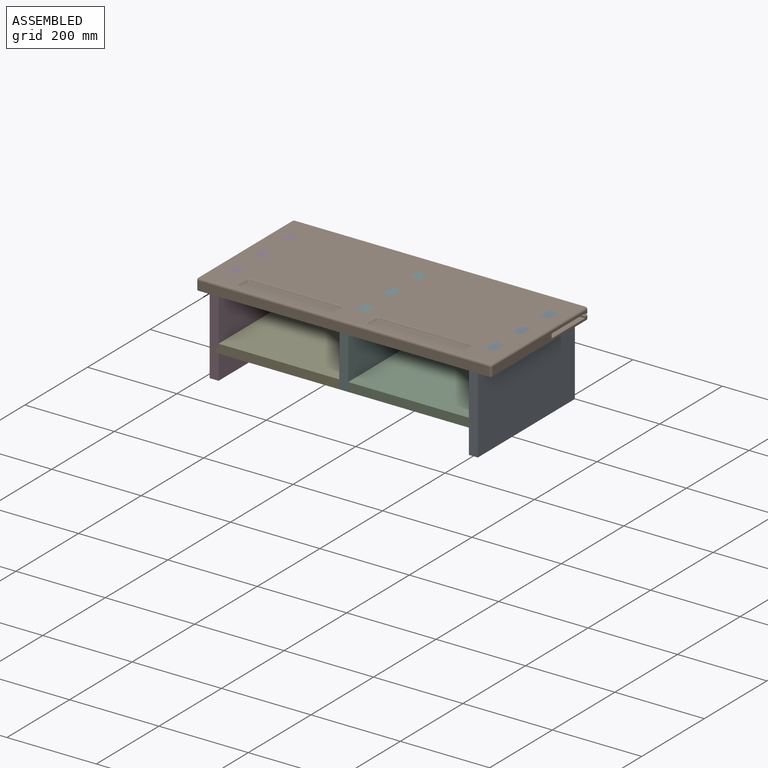
[diagram: assembled view]
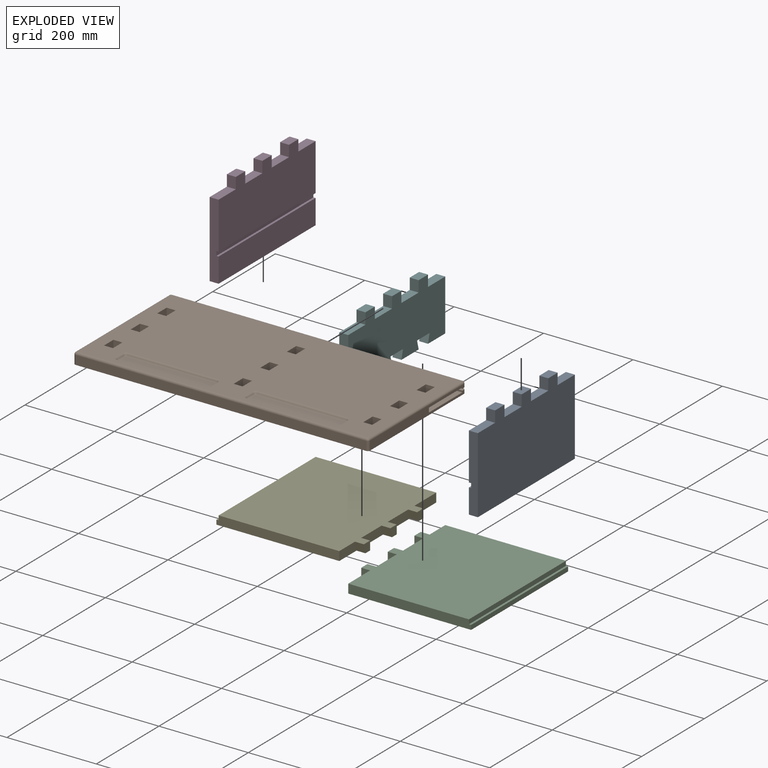
[diagram: exploded view]
GUIDED TOUR — MATED ASSEMBLY (Onshape document 3bc8e83e390c2407cafb0d33, AutoMate assembly 3bc8e83e390c2407cafb0d33_95cb70a22ce2d8c48ceac71e_00609371be02516c6efd1b77_default)

This assembly has 6 components, labeled P0..P5 below (a component is one placed occurrence of a part; the same part can appear more than once), held together by 5 mates. A mate is a constraint between two components; its type names the relative motion it leaves free:
  FASTENED — locks the two components together rigidly (no relative motion).
Axis/direction vectors are unit vectors and 'through' points are millimeter coordinates, both in the assembly's world frame.

MATES
  1. FASTENED "Fastened 4": P2 <-> P5, direction (0.000, 0.000, -1.000) through (168.34, 105.17, -126.24) mm
  2. FASTENED "Fastened 6": P5 <-> P1, direction (0.000, 0.000, 1.000) through (148.34, 90.17, 13.76) mm
  3. FASTENED "Fastened 3": P2 <-> P4, direction (0.000, -1.000, 0.000) through (158.34, 90.17, -116.24) mm
  4. FASTENED "Fastened 2": P0 <-> P1, direction (0.000, 0.000, 1.000) through (438.34, 90.17, 13.76) mm
  5. FASTENED "Fastened 1": P3 <-> P1, direction (0.000, 0.000, 1.000) through (-121.66, -79.83, 13.76) mm

ASSEMBLY ORDER
  1. P5 — the base component [order verified]
  2. P0 [order verified]
  3. P4 [order verified]
  4. P2 [order verified]
  5. P1 [order verified]
  6. P3 [order verified]
Order-tag legend:
  [order verified] — this step's position reverses a verified removal order: the component was checked to insert without passing through the ones already placed.

Of the 6 components, 2 carry the full construction recipe — the FeatureScript program that regenerates the part's solid from scratch; the rest are supplied as boundary geometry only.
Each toured component is shown spotlighted twice — in the assembled view, then in the exploded view, where a leader line traces a displaced component back to its assembled socket (saturated green if recipe-attached, orange if geometry-only; every other component desaturated gray) — followed by its recipe or geometry summary and the mates that hold it.
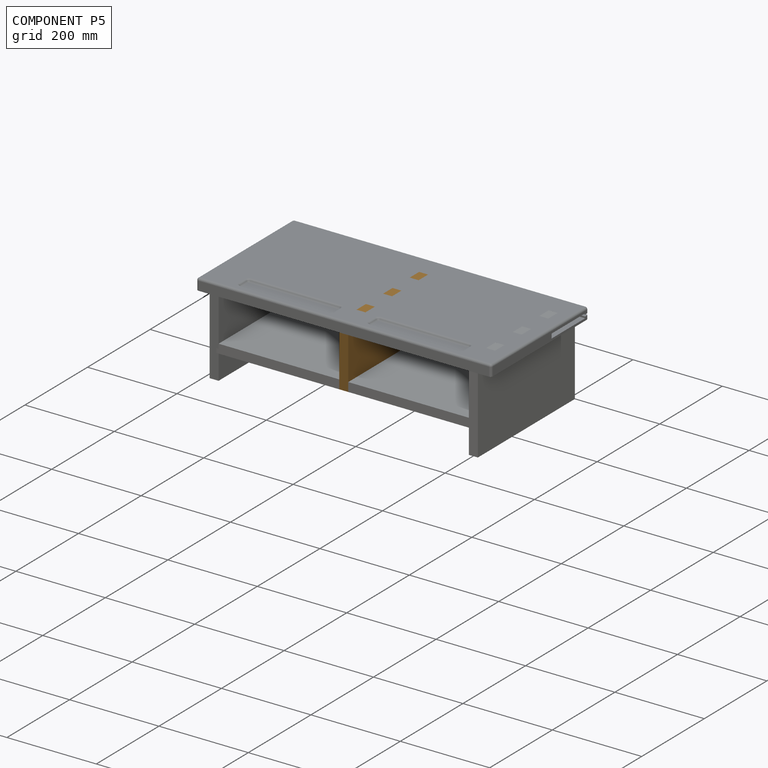
[diagram: component P5 — assembled]
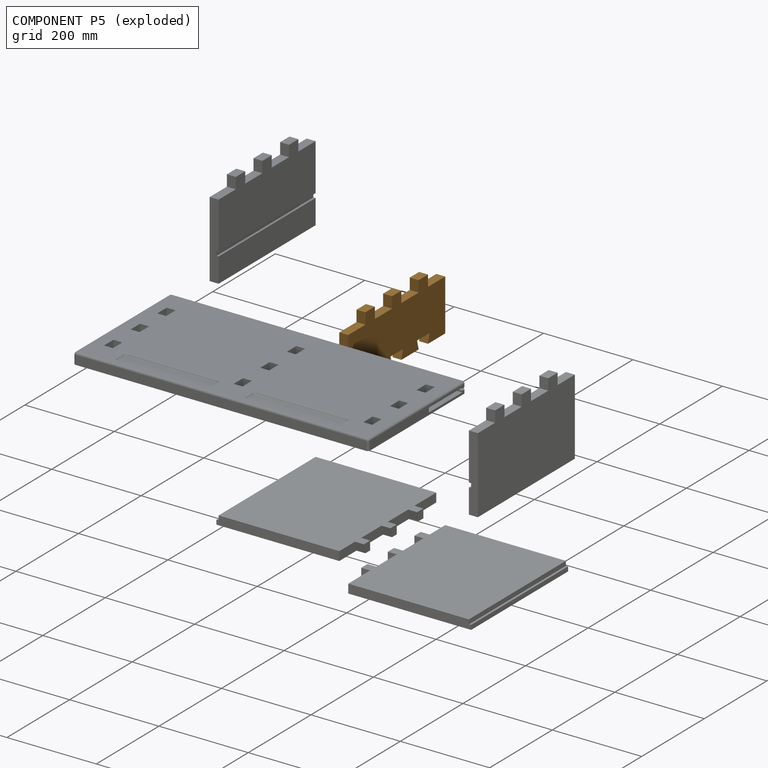
[diagram: component P5 — exploded]
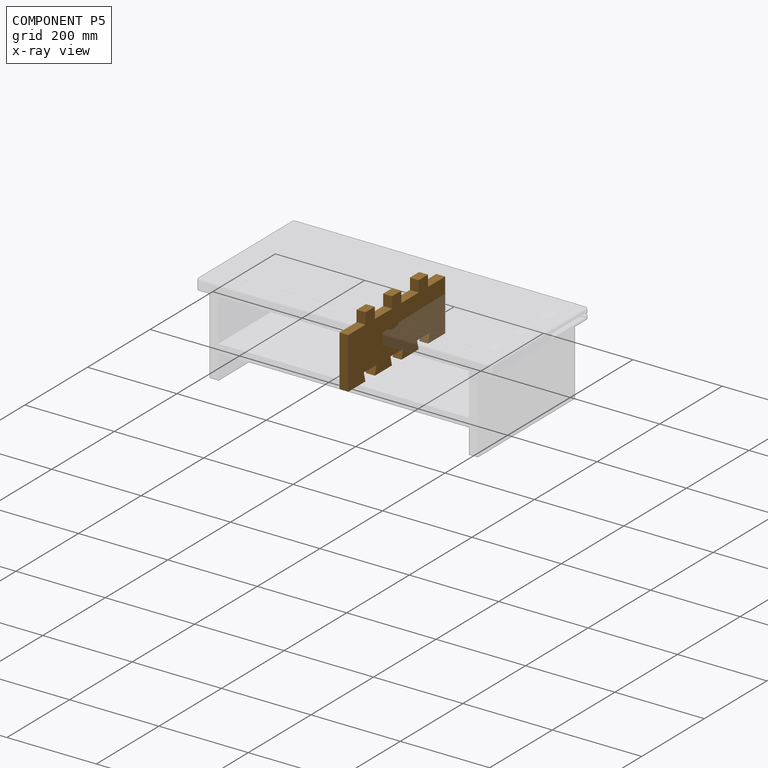
[diagram: component P5 — x-ray view]
COMPONENT P5 — geometry summary (no construction recipe available for this part):
  bounding box: 310.0 x 140.0 x 20.0 mm
  B-rep topology: 1 solid, 30 faces, 168 edges
  volume: 716000 mm^3 (82% of its bounding box)
  symmetry: 2-fold rotationally symmetric about the z axis; mirror-symmetric across its x mid-plane, y mid-plane
Held by: FASTENED mate "Fastened 4" to P2; FASTENED mate "Fastened 6" to P1.
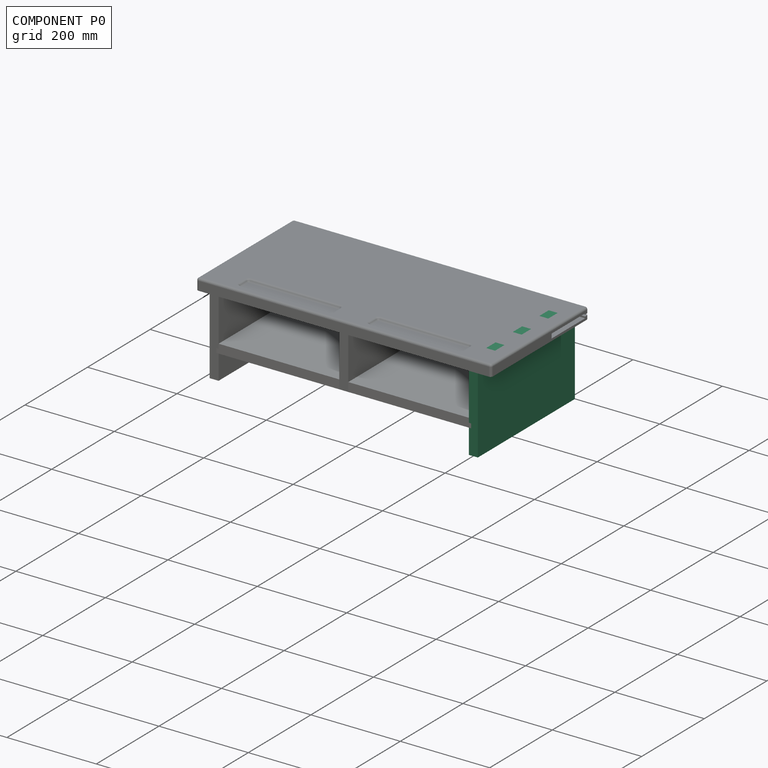
[diagram: component P0 — assembled]
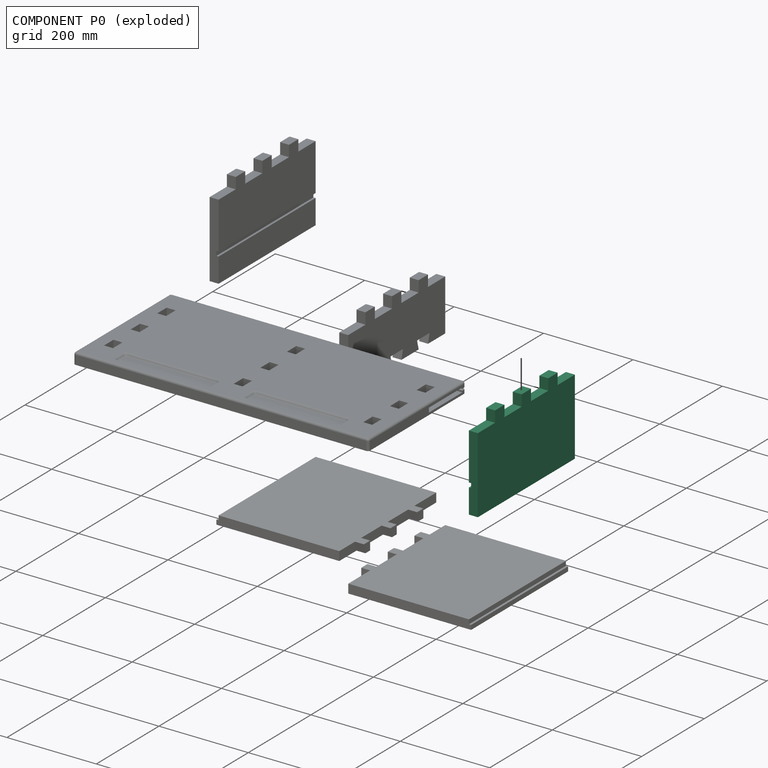
[diagram: component P0 — exploded]
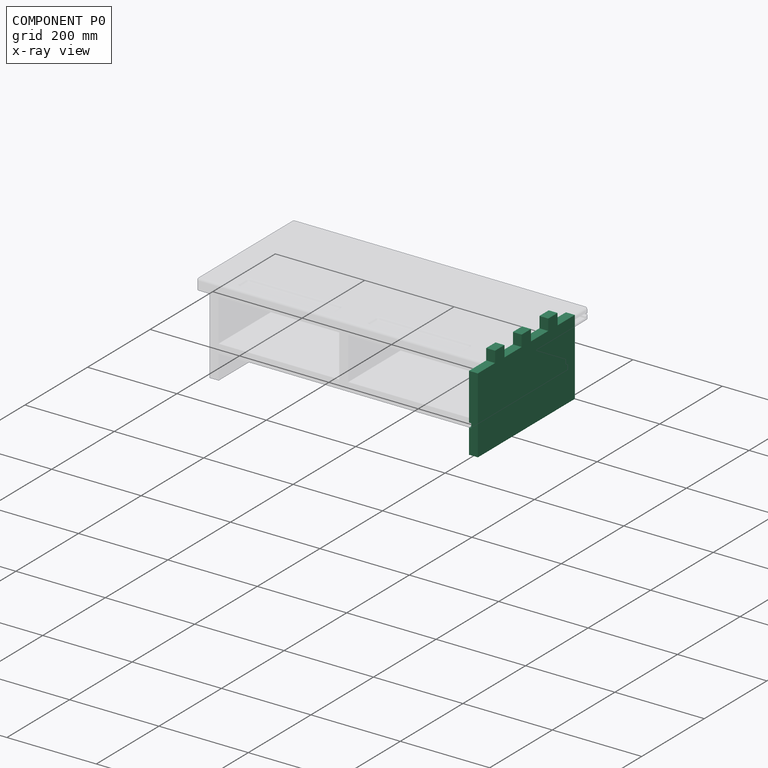
[diagram: component P0 — x-ray view]
COMPONENT P0 — recipe-attached (CADFS 00943072, mesh-verified: the recipe's output STEP matches this component's geometry to below the mesh-comparison resolution (tessellation chordal tolerance ~0.55 mm)).
Held by: FASTENED mate "Fastened 2" to P1.
Construction recipe (FeatureScript — the CAD program that rebuilds this solid; sketch coordinates are in the units given by the * unit suffixes, e.g. mm):

FeatureScript 1511;
import(path : "onshape/std/geometry.fs", version : "1511.0");
import(path : "onshape/std/common.fs", version : "1511.0");
const mm = millimeter;
const VERTEX = EntityType.VERTEX;
const EDGE = EntityType.EDGE;
const FACE = EntityType.FACE;
const BODY = EntityType.BODY;
function v(x, y){return vector(x, y);}
function OD(order){return orderDisambiguation(order);}
function OSD(set){return originalSetDisambiguation(set);}
function TD(topology){return topologyDisambiguation(topology);}
function TDD(query){return trueDependencyDisambiguation(query);}
function sQuery(a, b, c) {return sketchEntityQuery(a, b, c);}

annotation { "Feature Type Name" : "Feature", "Feature Type Description" : "" }
export const myFeature = defineFeature(function(context is Context, id is Id, definition is map)
    precondition{}
    {
        {
            var Q0;
            Q0=qCreatedBy(makeId("Right.planeOp"),FACE);
            var sketch = newSketch(context, id + "F0", { "sketchPlane" : qUnion([Q0])});
            skLineSegment(sketch, "E0.bottom", {"start": v(-191.91, 16.05) * mm, "end": v(118.09, 16.05) * mm});
            skLineSegment(sketch, "E0.top", {"start": v(-191.91, -153.95) * mm, "end": v(118.09, -153.95) * mm});
            skLineSegment(sketch, "E0.left", {"start": v(-191.91, 16.05) * mm, "end": v(-191.91, -153.95) * mm});
            skLineSegment(sketch, "E0.right", {"start": v(118.09, 16.05) * mm, "end": v(118.09, -153.95) * mm});
            skLineSegment(sketch, "E1.bottom", {"start": v(-136.91, 16.05) * mm, "end": v(-106.91, 16.05) * mm});
            skLineSegment(sketch, "E1.top", {"start": v(-136.91, 41.05) * mm, "end": v(-106.91, 41.05) * mm});
            skLineSegment(sketch, "E1.left", {"start": v(-136.91, 16.05) * mm, "end": v(-136.91, 41.05) * mm});
            skLineSegment(sketch, "E1.right", {"start": v(-106.91, 16.05) * mm, "end": v(-106.91, 41.05) * mm});
            skLineSegment(sketch, "E2.bottom", {"start": v(-51.91, 16.05) * mm, "end": v(-21.91, 16.05) * mm});
            skLineSegment(sketch, "E2.top", {"start": v(-51.91, 41.05) * mm, "end": v(-21.91, 41.05) * mm});
            skLineSegment(sketch, "E2.left", {"start": v(-51.91, 16.05) * mm, "end": v(-51.91, 41.05) * mm});
            skLineSegment(sketch, "E2.right", {"start": v(-21.91, 16.05) * mm, "end": v(-21.91, 41.05) * mm});
            skLineSegment(sketch, "E3.bottom", {"start": v(33.09, 16.05) * mm, "end": v(63.09, 16.05) * mm});
            skLineSegment(sketch, "E3.top", {"start": v(33.09, 41.05) * mm, "end": v(63.09, 41.05) * mm});
            skLineSegment(sketch, "E3.left", {"start": v(33.09, 16.05) * mm, "end": v(33.09, 41.05) * mm});
            skLineSegment(sketch, "E3.right", {"start": v(63.09, 16.05) * mm, "end": v(63.09, 41.05) * mm});
            skSolve(sketch);
        }
        {
            var Q0;
            Q0 = qSketchRegion(id + "F0", true);
            extrude(context, id + "F1", {"entities" : qUnion([Q0]), "depth" : 20 * mm, "offsetDistance" : 25 * mm});
        }
        {
            var Q0;
            Q0=makeQuery(id+"F1.opExtrude","CAP_FACE",FACE,{"disambiguationData":[OSD([sQuery(id+"F0.wireOp",EDGE,"E0.bottom"),sQuery(id+"F0.wireOp",EDGE,"E0.top"),sQuery(id+"F0.wireOp",EDGE,"E0.left"),sQuery(id+"F0.wireOp",EDGE,"E0.right"),sQuery(id+"F0.wireOp",EDGE,"E1.top"),sQuery(id+"F0.wireOp",EDGE,"E1.left"),sQuery(id+"F0.wireOp",EDGE,"E1.right"),sQuery(id+"F0.wireOp",EDGE,"E2.top"),sQuery(id+"F0.wireOp",EDGE,"E2.left"),sQuery(id+"F0.wireOp",EDGE,"E2.right"),sQuery(id+"F0.wireOp",EDGE,"E3.top"),sQuery(id+"F0.wireOp",EDGE,"E3.left"),sQuery(id+"F0.wireOp",EDGE,"E3.right")])],"isStart":false});
            var sketch = newSketch(context, id + "F2", { "sketchPlane" : qUnion([Q0])});
            skLineSegment(sketch, "E4.bottom", {"start": v(-191.91, -88.95) * mm, "end": v(118.09, -88.95) * mm});
            skLineSegment(sketch, "E4.top", {"start": v(-191.91, -98.95) * mm, "end": v(118.09, -98.95) * mm});
            skLineSegment(sketch, "E4.left", {"start": v(-191.91, -88.95) * mm, "end": v(-191.91, -98.95) * mm});
            skLineSegment(sketch, "E4.right", {"start": v(118.09, -88.95) * mm, "end": v(118.09, -98.95) * mm});
            skSolve(sketch);
        }
        {
            var Q0;
            Q0=makeQuery(id+"F2.imprint","IMPRINT",FACE,{"disambiguationData":[TD([[makeQuery(id+"F2.imprint","IMPRINT",EDGE,{"derivedFrom":sQuery(id+"F2.wireOp",EDGE,"E4.bottom")}),-1.0]])]});
            extrude(context, id + "F3", {"entities" : qUnion([Q0]), "operationType" : NewBodyOperationType.REMOVE, "oppositeDirection" : true, "depth" : 5 * mm, "offsetDistance" : 25 * mm});
        }
    });
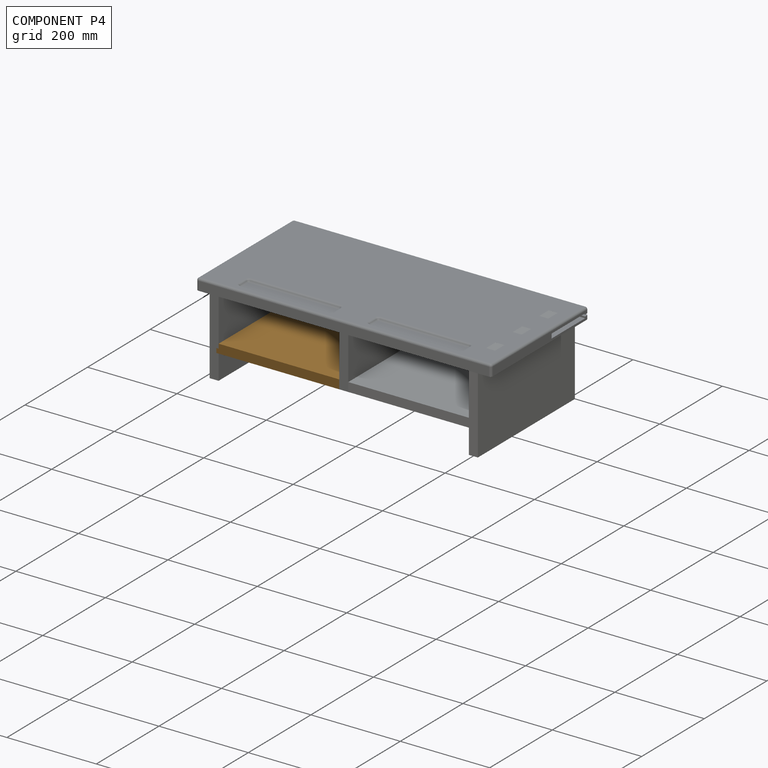
[diagram: component P4 — assembled]
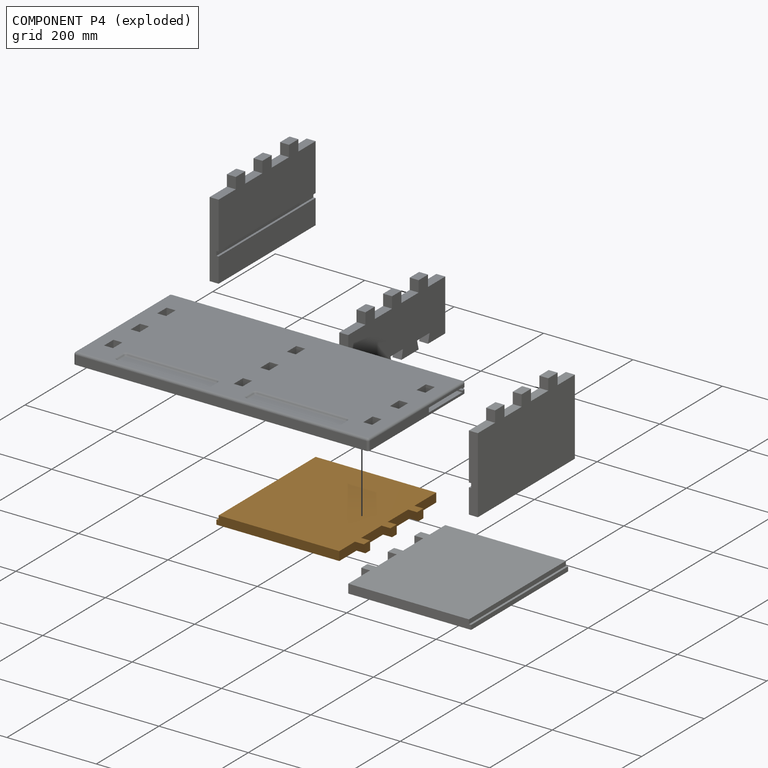
[diagram: component P4 — exploded]
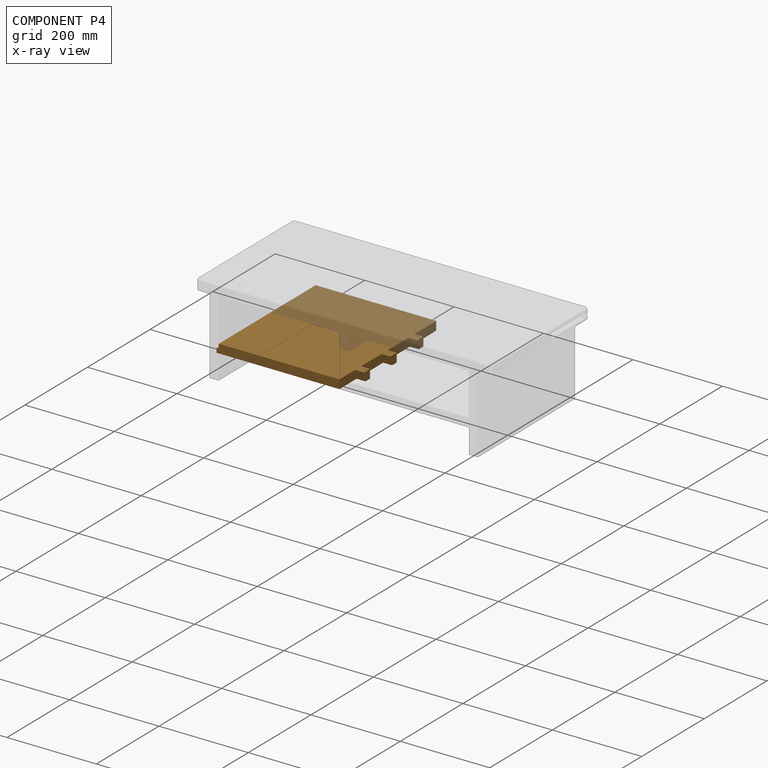
[diagram: component P4 — x-ray view]
COMPONENT P4 — geometry summary (no construction recipe available for this part):
  bounding box: 310.0 x 295.0 x 20.0 mm
  B-rep topology: 1 solid, 20 faces, 108 edges
  volume: 1710500 mm^3 (94% of its bounding box)
Held by: FASTENED mate "Fastened 3" to P2.
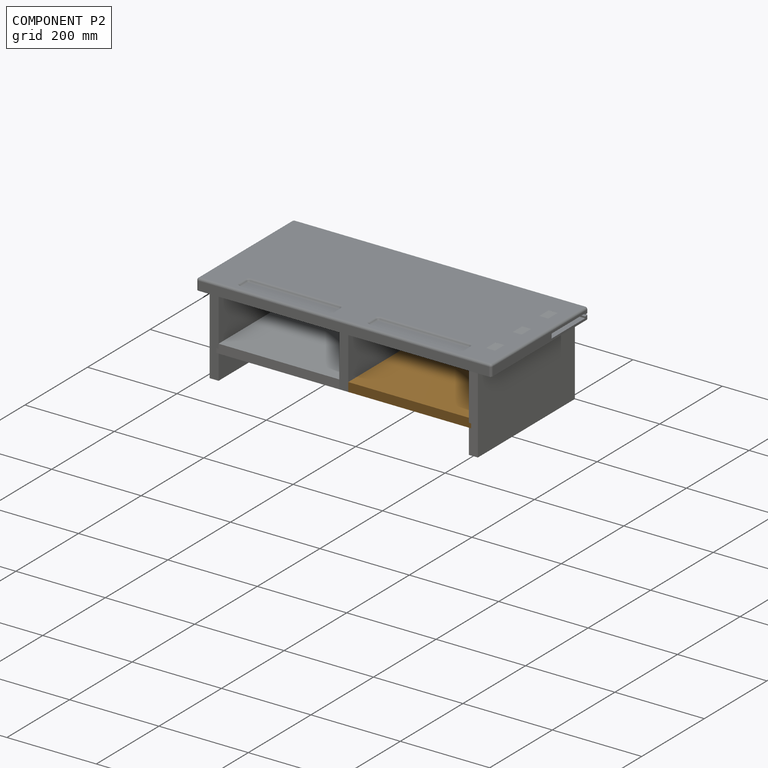
[diagram: component P2 — assembled]
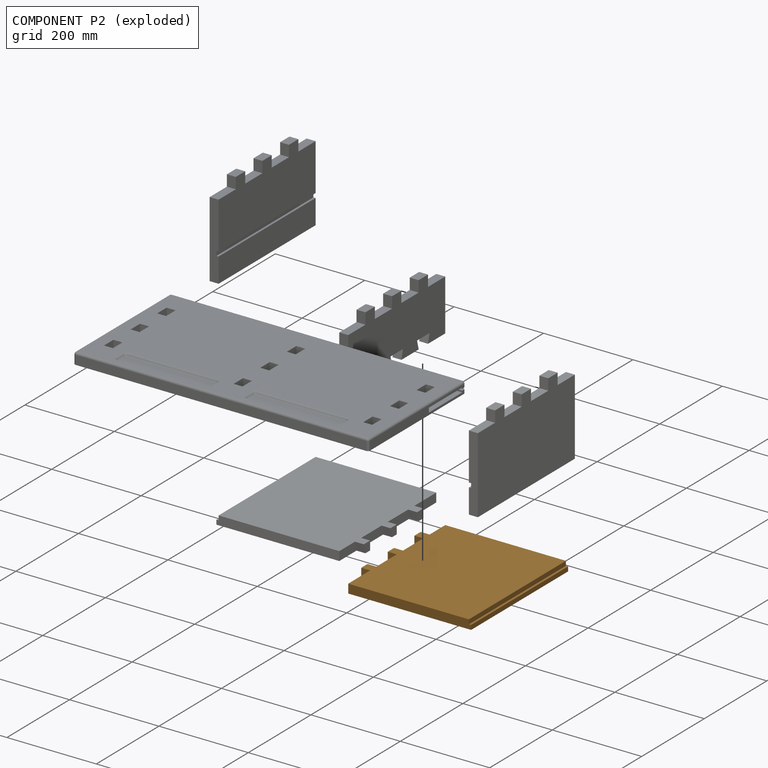
[diagram: component P2 — exploded]
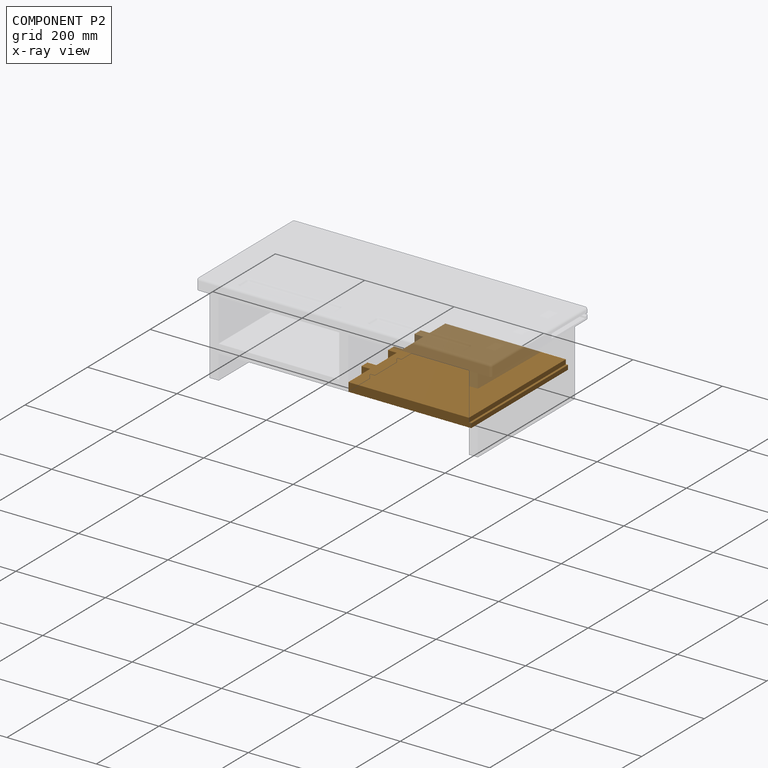
[diagram: component P2 — x-ray view]
COMPONENT P2 — geometry summary (no construction recipe available for this part):
  bounding box: 310.0 x 295.0 x 20.0 mm
  B-rep topology: 1 solid, 20 faces, 108 edges
  volume: 1710500 mm^3 (94% of its bounding box)
Held by: FASTENED mate "Fastened 4" to P5; FASTENED mate "Fastened 3" to P4.
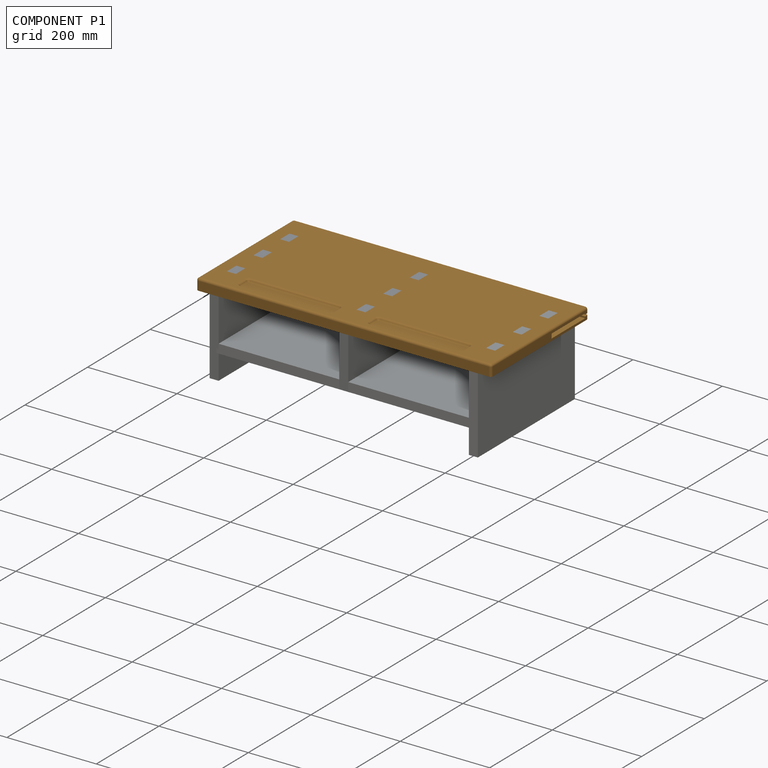
[diagram: component P1 — assembled]
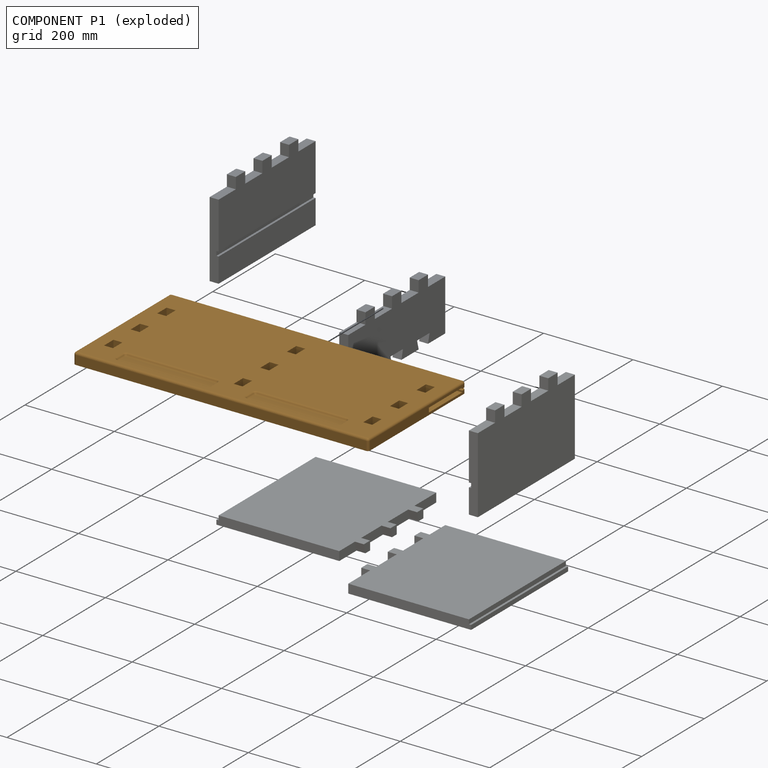
[diagram: component P1 — exploded]
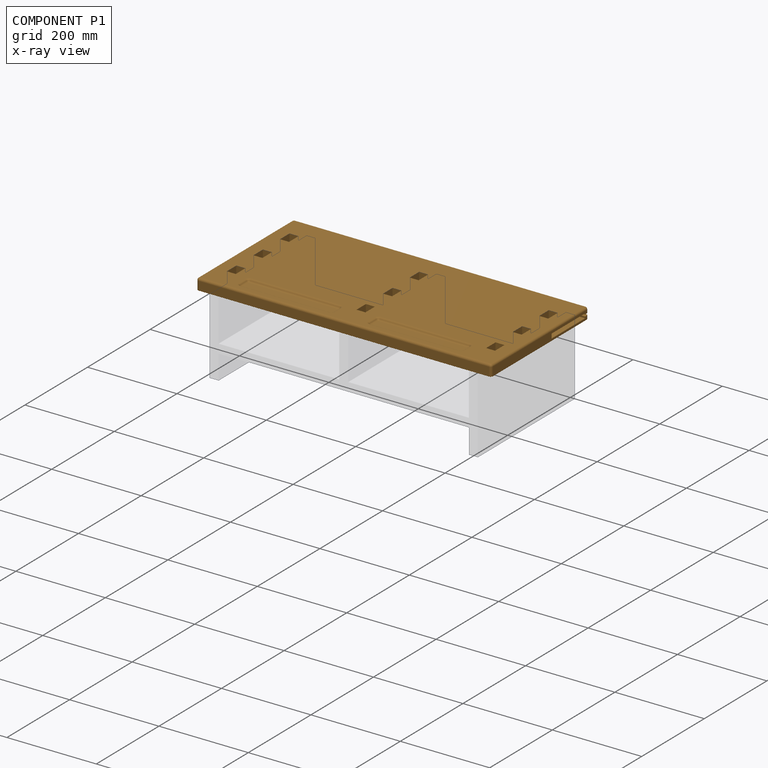
[diagram: component P1 — x-ray view]
COMPONENT P1 — geometry summary (no construction recipe available for this part):
  bounding box: 660.0 x 310.0 x 25.0 mm
  B-rep topology: 1 solid, 99 faces, 506 edges
  volume: 4873743 mm^3 (95% of its bounding box)
Held by: FASTENED mate "Fastened 6" to P5; FASTENED mate "Fastened 2" to P0; FASTENED mate "Fastened 1" to P3.
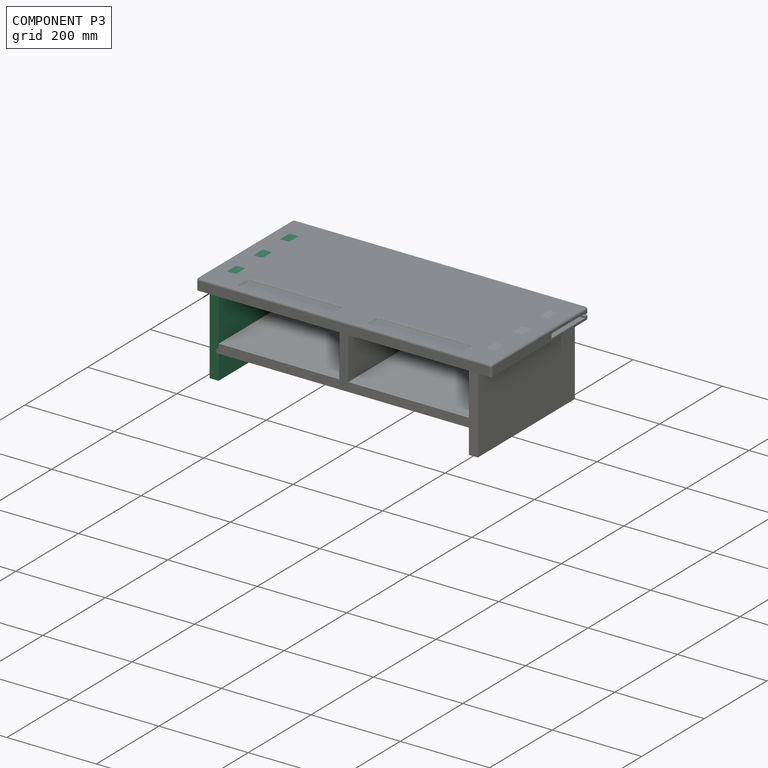
[diagram: component P3 — assembled]
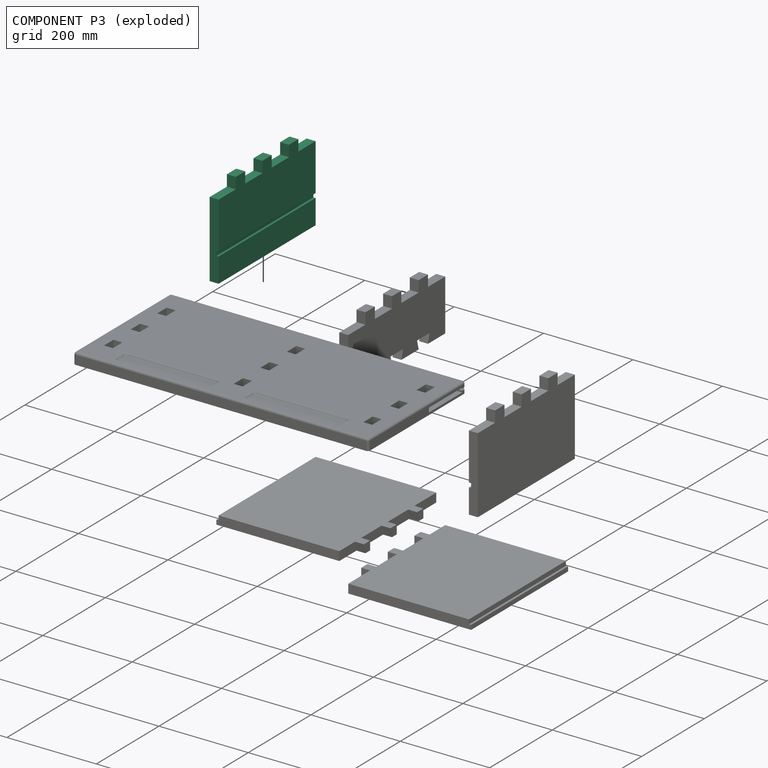
[diagram: component P3 — exploded]
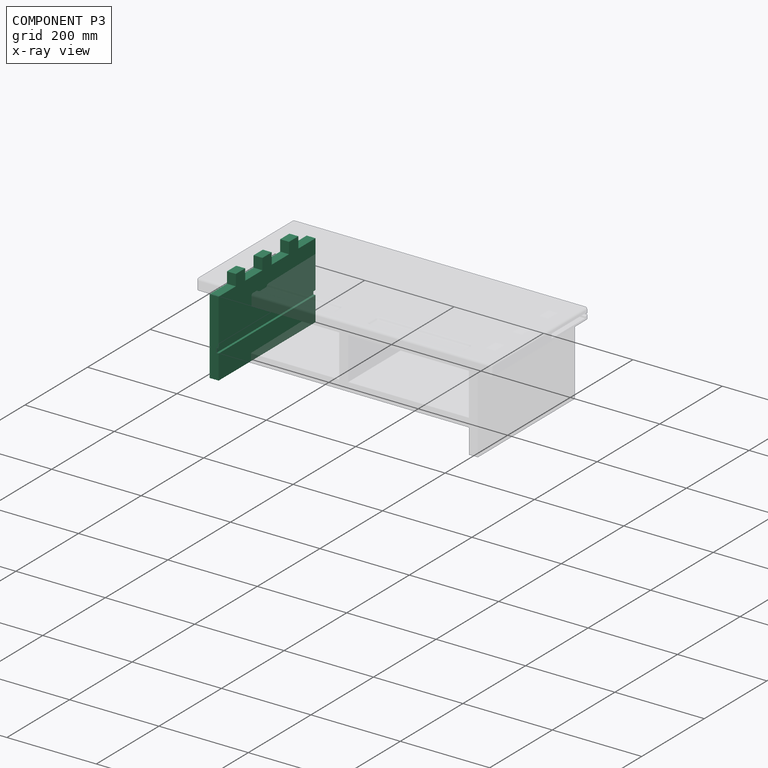
[diagram: component P3 — x-ray view]
COMPONENT P3 — same part as P0 (CADFS 00943072); its construction recipe is shown at P0.
Held by: FASTENED mate "Fastened 1" to P1.
PROVENANCE & LICENSES
Assembly (occurrences, transforms, mates, per-part STEP geometry): AutoMate dataset, Zenodo record 7776208, CC0.
Construction recipes: CADFS (HuggingFace VladPyatov/CADFS, CC-BY-4.0, layered over the ABC dataset), FeatureScript reconstruction programs keyed by ABC model id.
Join: ABC meta listings map ABC model id -> Onshape documentId; within a shared document, parts are matched by geometric signature (bounding-box dims + volume at 0.1% relative tolerance, exact B-rep face/solid counts).
Verification: 2 of this assembly's 6 components carry a recipe attachment, and every attachment is mesh-verified: the CADFS STEP and the AutoMate member STEP were compared as meshes in their shared local frame (symmetric sampled-point-to-mesh distance); worst across the 2 attachments: below the mesh-comparison resolution (tessellation chordal tolerance ~0.55 mm) on a 367 mm part.
Renders: orthographic iso camera (az 35 / el 25); the floor grid conveys scale (grid pitch printed in each image; no ruler). In the exploded view each component is displaced by its stored offset vector: the offsets alone carry the explosion direction (mate normal/axis signs are not orientation cues and do not encode it), and separation distances are assigned per mate-chain, not proportionally to assembly-order depth.
